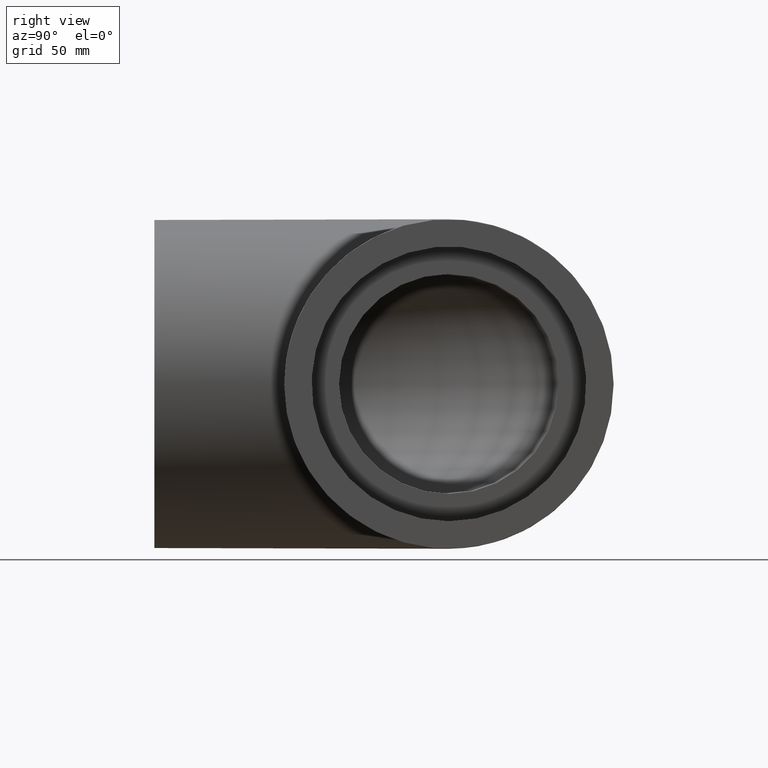
[diagram: clean part render]
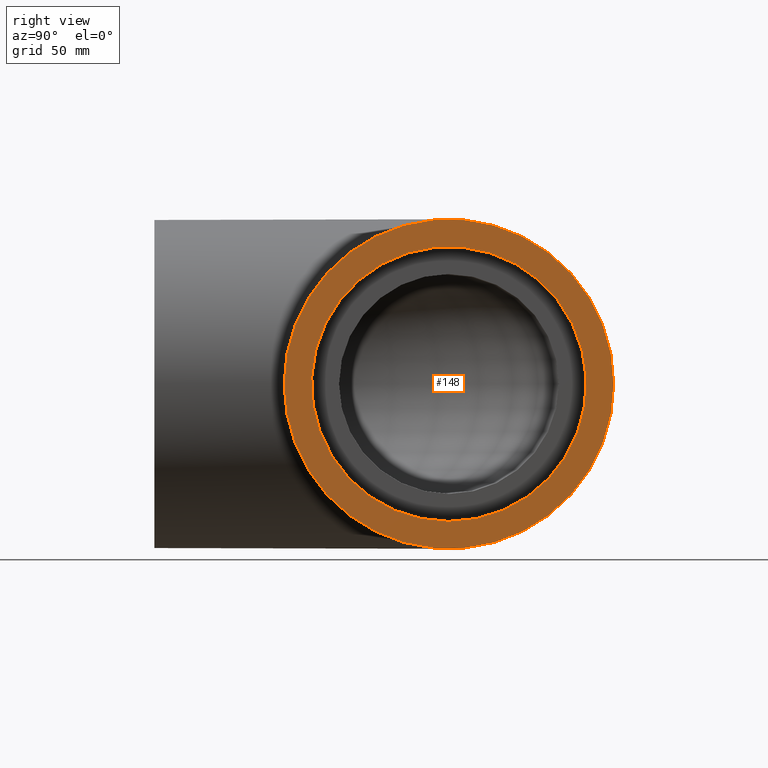
[diagram: same view with one face highlighted and labeled with its STEP entity id]
A machine part, right view. The second image highlights one B-rep face of the part: STEP entity #148.
In plain terms, the highlighted planar face has unit normal (1, 0, 0).
Its self-contained STEP definition (entity closure, byte-faithful):
#20=PLANE('',#175);
#32=FACE_BOUND('',#67,.T.);
#44=FACE_OUTER_BOUND('',#66,.T.);
#66=EDGE_LOOP('',(#129));
#67=EDGE_LOOP('',(#130));
#75=CIRCLE('',#164,55.036);
#79=CIRCLE('',#174,66.);
#87=VERTEX_POINT('',#249);
#91=VERTEX_POINT('',#263);
#99=EDGE_CURVE('',#87,#87,#75,.T.);
#104=EDGE_CURVE('',#91,#91,#79,.T.);
#129=ORIENTED_EDGE('',*,*,#104,.T.);
#130=ORIENTED_EDGE('',*,*,#99,.T.);
#148=ADVANCED_FACE('',(#44,#32),#20,.T.);
#164=AXIS2_PLACEMENT_3D('',#250,#204,#205);
#174=AXIS2_PLACEMENT_3D('',#264,#224,#225);
#175=AXIS2_PLACEMENT_3D('',#265,#226,#227);
#204=DIRECTION('center_axis',(-1.,0.,0.));
#205=DIRECTION('ref_axis',(0.,0.,1.));
#224=DIRECTION('center_axis',(1.,0.,0.));
#225=DIRECTION('ref_axis',(0.,0.,-1.));
#226=DIRECTION('center_axis',(1.,0.,0.));
#227=DIRECTION('ref_axis',(0.,0.,-1.));
#249=CARTESIAN_POINT('',(120.,6.73996612378737E-15,-55.036));
#250=CARTESIAN_POINT('Origin',(120.,0.,0.));
#263=CARTESIAN_POINT('',(120.,66.,0.));
#264=CARTESIAN_POINT('Origin',(120.,0.,0.));
#265=CARTESIAN_POINT('Origin',(120.,0.,0.));